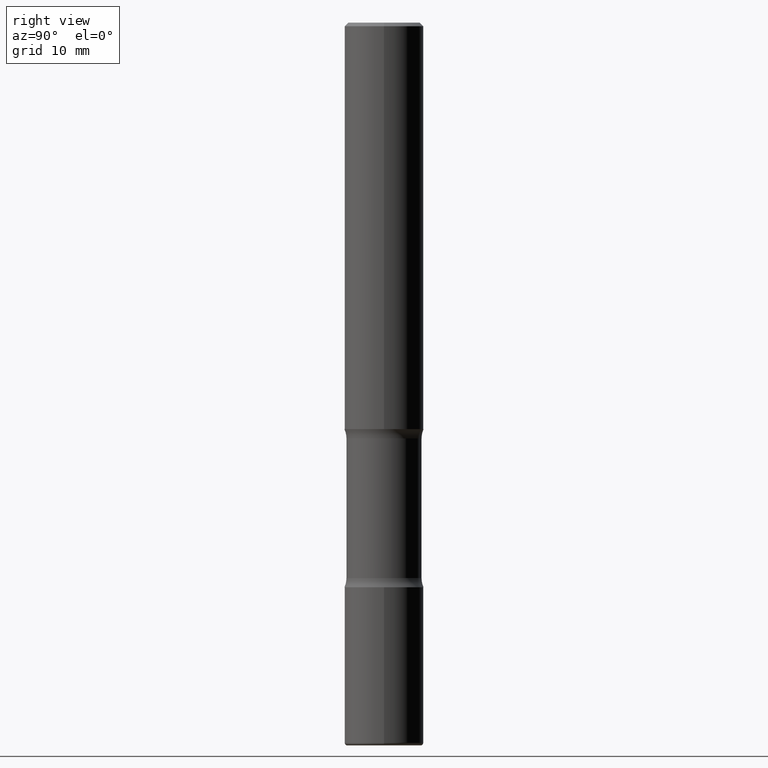
[diagram: clean part render]
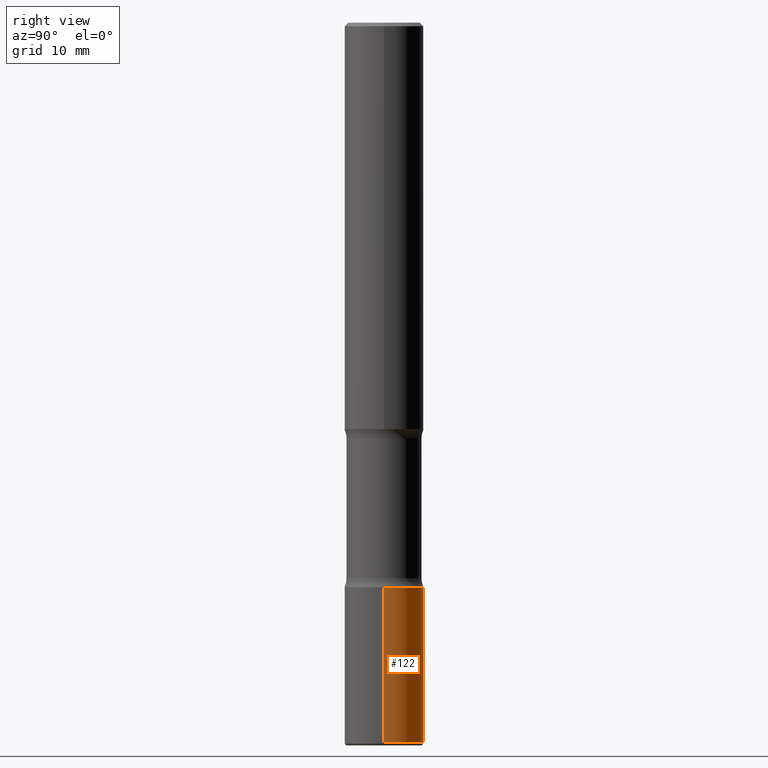
[diagram: same view with one face highlighted and labeled with its STEP entity id]
A machine part, right view. The second image highlights one B-rep face of the part: STEP entity #122.
In plain terms, the highlighted cylindrical surface (partial cylindrical patch) has radius 5.5563 mm, axis along (-0, 0, 1).
Its self-contained STEP definition (entity closure, byte-faithful):
#8 = LINE ( 'NONE', #347, #262 ) ;
#33 = DIRECTION ( 'NONE',  ( -2.445468806185136597E-29, 3.491481338843145583E-15, 1.000000000000000000 ) ) ;
#37 = AXIS2_PLACEMENT_3D ( 'NONE', #459, #33, #255 ) ;
#52 = CARTESIAN_POINT ( 'NONE',  ( 0.2187500000000001943, -1.243840226962869808E-14, -3.124999999999999112 ) ) ;
#58 = AXIS2_PLACEMENT_3D ( 'NONE', #194, #541, #281 ) ;
#67 = CIRCLE ( 'NONE', #58, 0.2187500000000001943 ) ;
#81 = CARTESIAN_POINT ( 'NONE',  ( -0.2187500000000003331, -1.235924090081471176E-14, -3.984999999999998987 ) ) ;
#92 = VERTEX_POINT ( 'NONE', #81 ) ;
#97 = DIRECTION ( 'NONE',  ( -2.445468806185136877E-29, 3.491481338843145188E-15, 1.000000000000000000 ) ) ;
#122 = ADVANCED_FACE ( 'NONE', ( #128 ), #204, .T. ) ;
#128 = FACE_OUTER_BOUND ( 'NONE', #540, .T. ) ;
#146 = ORIENTED_EDGE ( 'NONE', *, *, #301, .F. ) ;
#160 = EDGE_CURVE ( 'NONE', #92, #232, #8, .T. ) ;
#189 = CARTESIAN_POINT ( 'NONE',  ( 0.2187500000000003331, -1.544107622103380570E-14, -3.984999999999998987 ) ) ;
#194 = CARTESIAN_POINT ( 'NONE',  ( 7.642090019328550744E-29, -1.091087918388482645E-14, -3.124999999999999112 ) ) ;
#204 = CYLINDRICAL_SURFACE ( 'NONE', #37, 0.2187500000000001665 ) ;
#232 = VERTEX_POINT ( 'NONE', #404 ) ;
#255 = DIRECTION ( 'NONE',  ( 1.000000000000000000, -6.982962677686266711E-15, 4.876176775795935793E-29 ) ) ;
#262 = VECTOR ( 'NONE', #97, 39.37007874015748143 ) ;
#281 = DIRECTION ( 'NONE',  ( 1.000000000000000000, -6.982962677686265922E-15, 0.000000000000000000 ) ) ;
#283 = ORIENTED_EDGE ( 'NONE', *, *, #388, .F. ) ;
#301 = EDGE_CURVE ( 'NONE', #512, #232, #67, .T. ) ;
#303 = ORIENTED_EDGE ( 'NONE', *, *, #348, .T. ) ;
#310 = VECTOR ( 'NONE', #530, 39.37007874015748143 ) ;
#321 = DIRECTION ( 'NONE',  ( 1.000000000000000000, -6.982962677686269077E-15, 0.000000000000000000 ) ) ;
#347 = CARTESIAN_POINT ( 'NONE',  ( -0.2187500000000001665, 1.554312234475220340E-15, -1.076017050993261463E-29 ) ) ;
#348 = EDGE_CURVE ( 'NONE', #416, #92, #435, .T. ) ;
#368 = ORIENTED_EDGE ( 'NONE', *, *, #160, .T. ) ;
#388 = EDGE_CURVE ( 'NONE', #416, #512, #462, .T. ) ;
#402 = CARTESIAN_POINT ( 'NONE',  ( 9.745193192647766827E-29, -1.391355313528993249E-14, -3.984999999999998987 ) ) ;
#404 = CARTESIAN_POINT ( 'NONE',  ( -0.2187500000000001943, -1.085790392511215873E-14, -3.124999999999999112 ) ) ;
#416 = VERTEX_POINT ( 'NONE', #189 ) ;
#419 = AXIS2_PLACEMENT_3D ( 'NONE', #402, #421, #321 ) ;
#421 = DIRECTION ( 'NONE',  ( -2.445468806185136597E-29, 3.491481338843145583E-15, 1.000000000000000000 ) ) ;
#435 = CIRCLE ( 'NONE', #419, 0.2187500000000000833 ) ;
#459 = CARTESIAN_POINT ( 'NONE',  ( 0.000000000000000000, 0.000000000000000000, 0.000000000000000000 ) ) ;
#462 = LINE ( 'NONE', #505, #310 ) ;
#505 = CARTESIAN_POINT ( 'NONE',  ( 0.2187500000000001665, -1.527523085743872026E-15, 1.066663669705361725E-29 ) ) ;
#512 = VERTEX_POINT ( 'NONE', #52 ) ;
#530 = DIRECTION ( 'NONE',  ( -2.445468806185136877E-29, 3.491481338843145188E-15, 1.000000000000000000 ) ) ;
#540 = EDGE_LOOP ( 'NONE', ( #303, #368, #146, #283 ) ) ;
#541 = DIRECTION ( 'NONE',  ( -2.445468806185136597E-29, 3.491481338843145583E-15, 1.000000000000000000 ) ) ;